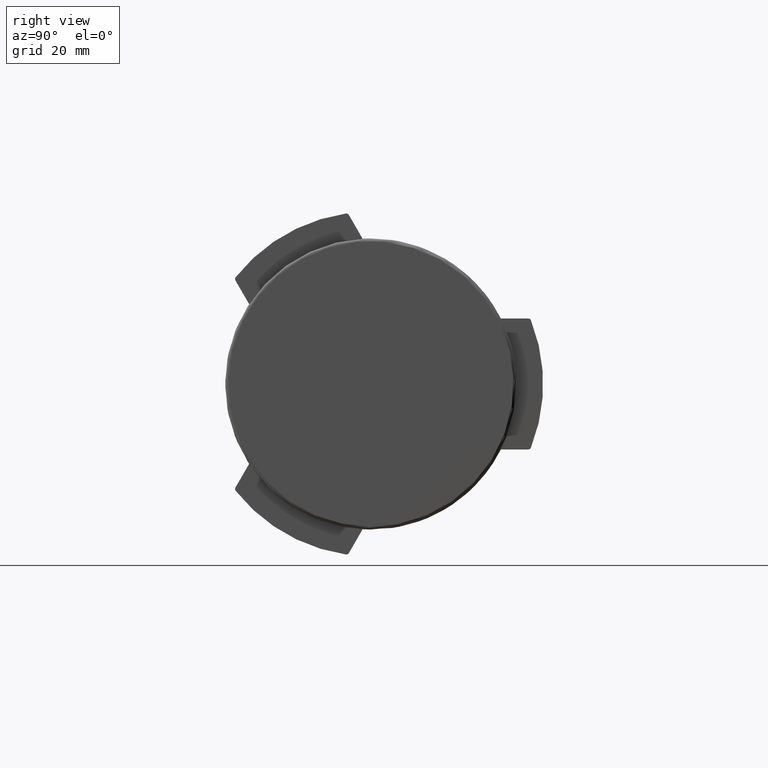
[diagram: clean part render]
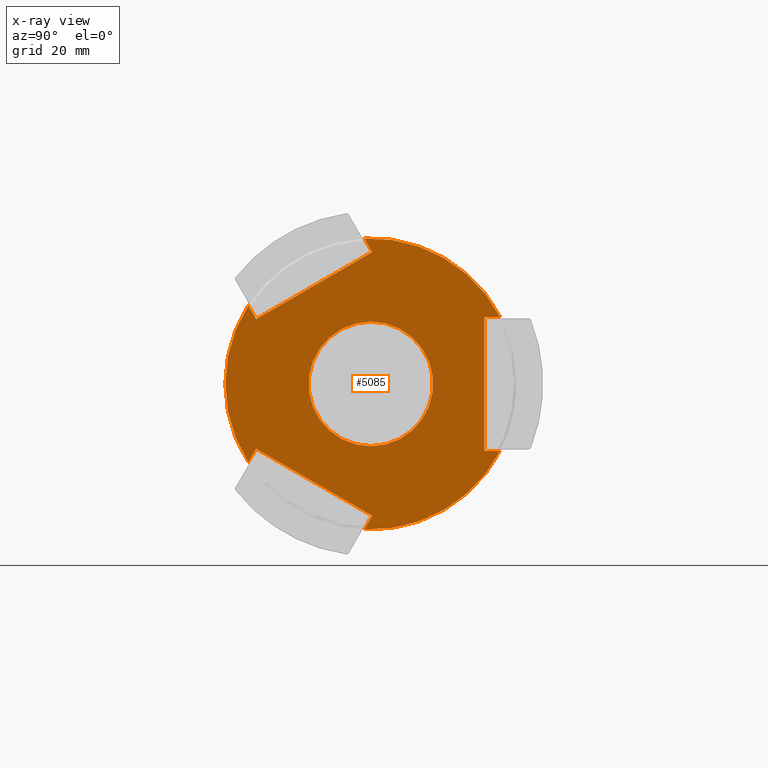
[diagram: x-ray — body ghosted, one internal face saturated and labeled with its STEP entity id]
A machine part, right view, then the same camera in x-ray: the body is ghosted and one INTERNAL B-rep face — a face not visible from any outside direction — is saturated and labeled: STEP entity #5085.
In plain terms, the highlighted planar face has unit normal (1, -0, 0).
Its self-contained STEP definition (entity closure, byte-faithful):
#42 = VERTEX_POINT ( 'NONE', #712 ) ;
#87 = ORIENTED_EDGE ( 'NONE', *, *, #2084, .T. ) ;
#218 = FACE_OUTER_BOUND ( 'NONE', #8302, .T. ) ;
#320 = LINE ( 'NONE', #13228, #8144 ) ;
#638 = AXIS2_PLACEMENT_3D ( 'NONE', #8828, #11201, #9952 ) ;
#663 = CARTESIAN_POINT ( 'NONE',  ( 0.000000000000000000, 0.000000000000000000, 0.000000000000000000 ) ) ;
#712 = CARTESIAN_POINT ( 'NONE',  ( 22.63749537379659671, 0.2092921435212552472, 0.000000000000000000 ) ) ;
#715 = VERTEX_POINT ( 'NONE', #12496 ) ;
#733 = ORIENTED_EDGE ( 'NONE', *, *, #6734, .F. ) ;
#1274 = ORIENTED_EDGE ( 'NONE', *, *, #4372, .T. ) ;
#1296 = CARTESIAN_POINT ( 'NONE',  ( -11.50000000000004619, 22.19797288042321171, 0.000000000000000000 ) ) ;
#1320 = DIRECTION ( 'NONE',  ( 4.070452937462397577E-31, 1.000000000000000000, -1.060244283745954078E-30 ) ) ;
#1365 = ORIENTED_EDGE ( 'NONE', *, *, #9888, .F. ) ;
#1515 = CARTESIAN_POINT ( 'NONE',  ( -5.750000000000071942, 9.959292143521045304, 0.000000000000000000 ) ) ;
#1633 = AXIS2_PLACEMENT_3D ( 'NONE', #10393, #4873, #13871 ) ;
#1824 = CARTESIAN_POINT ( 'NONE',  ( 24.97400842696460543, -1.139694296690291653, 0.000000000000000000 ) ) ;
#1889 = ORIENTED_EDGE ( 'NONE', *, *, #10004, .F. ) ;
#2084 = EDGE_CURVE ( 'NONE', #715, #2225, #14002, .T. ) ;
#2214 = EDGE_CURVE ( 'NONE', #12194, #7609, #9487, .T. ) ;
#2225 = VERTEX_POINT ( 'NONE', #13271 ) ;
#2260 = VERTEX_POINT ( 'NONE', #10915 ) ;
#2298 = VERTEX_POINT ( 'NONE', #3303 ) ;
#2304 = CARTESIAN_POINT ( 'NONE',  ( 22.63749537379659671, 0.2092921435212534986, 0.000000000000000000 ) ) ;
#2477 = CARTESIAN_POINT ( 'NONE',  ( 0.000000000000000000, 0.000000000000000000, 0.000000000000000000 ) ) ;
#2562 = PLANE ( 'NONE',  #13590 ) ;
#2616 = LINE ( 'NONE', #7667, #4905 ) ;
#2837 = CARTESIAN_POINT ( 'NONE',  ( 13.47400842696474044, -21.05827858373257655, 0.000000000000000000 ) ) ;
#3069 = VECTOR ( 'NONE', #8481, 999.9999999999998863 ) ;
#3161 = ORIENTED_EDGE ( 'NONE', *, *, #12725, .F. ) ;
#3303 = CARTESIAN_POINT ( 'NONE',  ( -10.70000000000006679, -4.341989800321579639E-30, 8.968362416231378243E-30 ) ) ;
#3733 = VERTEX_POINT ( 'NONE', #9048 ) ;
#3807 = CARTESIAN_POINT ( 'NONE',  ( -5.749999999999919176, -9.959292143521171425, 0.000000000000000000 ) ) ;
#4099 = CARTESIAN_POINT ( 'NONE',  ( 11.13749537379678323, -19.70929214352103997, 0.000000000000000000 ) ) ;
#4181 = LINE ( 'NONE', #3807, #12727 ) ;
#4372 = EDGE_CURVE ( 'NONE', #5654, #7609, #4181, .T. ) ;
#4873 = DIRECTION ( 'NONE',  ( 6.902532920683853297E-31, 1.035592380457804115E-30, -1.000000000000000000 ) ) ;
#4881 = DIRECTION ( 'NONE',  ( 8.381647117973197884E-31, -1.035592380457804115E-30, 1.000000000000000000 ) ) ;
#4905 = VECTOR ( 'NONE', #6773, 1000.000000000000000 ) ;
#5085 = ADVANCED_FACE ( 'NONE', ( #6096, #218 ), #2562, .F. ) ;
#5338 = CARTESIAN_POINT ( 'NONE',  ( -11.13749537379651144, -19.70929214352119629, -9.714451465470119729E-14 ) ) ;
#5654 = VERTEX_POINT ( 'NONE', #11633 ) ;
#6084 = LINE ( 'NONE', #4099, #3069 ) ;
#6096 = FACE_BOUND ( 'NONE', #9316, .T. ) ;
#6127 = LINE ( 'NONE', #11702, #8962 ) ;
#6194 = EDGE_CURVE ( 'NONE', #3733, #12194, #10345, .T. ) ;
#6225 = LINE ( 'NONE', #2304, #6579 ) ;
#6289 = ORIENTED_EDGE ( 'NONE', *, *, #2214, .F. ) ;
#6429 = VERTEX_POINT ( 'NONE', #9852 ) ;
#6537 = ORIENTED_EDGE ( 'NONE', *, *, #8579, .T. ) ;
#6579 = VECTOR ( 'NONE', #11402, 1000.000000000000000 ) ;
#6734 = EDGE_CURVE ( 'NONE', #5654, #42, #6084, .T. ) ;
#6773 = DIRECTION ( 'NONE',  ( 0.5000000000000035527, -0.8660254037844367092, 6.409494854920675377E-31 ) ) ;
#7333 = AXIS2_PLACEMENT_3D ( 'NONE', #2477, #11413, #12582 ) ;
#7609 = VERTEX_POINT ( 'NONE', #2837 ) ;
#7667 = CARTESIAN_POINT ( 'NONE',  ( -22.63749537379670329, 0.2092921435209447178, 0.000000000000000000 ) ) ;
#8093 = ORIENTED_EDGE ( 'NONE', *, *, #6194, .F. ) ;
#8144 = VECTOR ( 'NONE', #9911, 1000.000000000000000 ) ;
#8240 = EDGE_CURVE ( 'NONE', #42, #9343, #6225, .T. ) ;
#8302 = EDGE_LOOP ( 'NONE', ( #9179, #6537, #9906, #1365, #12080, #87, #1889, #12837, #733, #1274, #6289, #8093 ) ) ;
#8481 = DIRECTION ( 'NONE',  ( 0.4999999999999917843, 0.8660254037844434816, -1.429810390713074263E-30 ) ) ;
#8539 = LINE ( 'NONE', #1515, #9245 ) ;
#8579 = EDGE_CURVE ( 'NONE', #10153, #6429, #8539, .T. ) ;
#8620 = DIRECTION ( 'NONE',  ( 1.000000000000000000, 4.057934392823881420E-31, -8.381647117973199635E-31 ) ) ;
#8627 = CIRCLE ( 'NONE', #1633, 10.70000000000006679 ) ;
#8648 = CIRCLE ( 'NONE', #7333, 25.00000000000015632 ) ;
#8828 = CARTESIAN_POINT ( 'NONE',  ( 0.000000000000000000, 0.000000000000000000, 0.000000000000000000 ) ) ;
#8962 = VECTOR ( 'NONE', #9431, 1000.000000000000000 ) ;
#9027 = CARTESIAN_POINT ( 'NONE',  ( -13.47400842696444911, -21.05827858373276484, -9.714451465470119729E-14 ) ) ;
#9048 = CARTESIAN_POINT ( 'NONE',  ( -11.13749537379651144, -19.70929214352119629, -9.714451465470119729E-14 ) ) ;
#9104 = CARTESIAN_POINT ( 'NONE',  ( -22.63749537379670329, 0.2092921435209447178, 0.000000000000000000 ) ) ;
#9179 = ORIENTED_EDGE ( 'NONE', *, *, #12073, .F. ) ;
#9245 = VECTOR ( 'NONE', #14219, 1000.000000000000000 ) ;
#9253 = AXIS2_PLACEMENT_3D ( 'NONE', #663, #14416, #8620 ) ;
#9270 = DIRECTION ( 'NONE',  ( 0.8660254037844434816, -0.4999999999999915623, -1.725633230170951282E-31 ) ) ;
#9316 = EDGE_LOOP ( 'NONE', ( #3161 ) ) ;
#9343 = VERTEX_POINT ( 'NONE', #1824 ) ;
#9431 = DIRECTION ( 'NONE',  ( -1.000000000000000000, 1.508455196501565513E-16, 8.381647117973197884E-31 ) ) ;
#9487 = CIRCLE ( 'NONE', #9253, 25.00000000000015632 ) ;
#9488 = DIRECTION ( 'NONE',  ( 1.000000000000000000, 4.057934392823880544E-31, -8.381647117973197884E-31 ) ) ;
#9852 = CARTESIAN_POINT ( 'NONE',  ( -24.97400842696468359, -1.139694296690629605, 0.000000000000000000 ) ) ;
#9888 = EDGE_CURVE ( 'NONE', #2260, #14410, #320, .T. ) ;
#9906 = ORIENTED_EDGE ( 'NONE', *, *, #12322, .F. ) ;
#9911 = DIRECTION ( 'NONE',  ( -3.154042683594184767E-16, 1.000000000000000000, -1.056948228073669013E-30 ) ) ;
#9952 = DIRECTION ( 'NONE',  ( 1.000000000000000000, 4.057934392823881420E-31, -8.381647117973199635E-31 ) ) ;
#10004 = EDGE_CURVE ( 'NONE', #9343, #2225, #13708, .T. ) ;
#10153 = VERTEX_POINT ( 'NONE', #9104 ) ;
#10345 = LINE ( 'NONE', #5338, #11076 ) ;
#10393 = CARTESIAN_POINT ( 'NONE',  ( 0.000000000000000000, 0.000000000000000000, 0.000000000000000000 ) ) ;
#10508 = CARTESIAN_POINT ( 'NONE',  ( 0.000000000000000000, 0.000000000000000000, 0.000000000000000000 ) ) ;
#10915 = CARTESIAN_POINT ( 'NONE',  ( -11.50000000000004619, 19.50000000000009592, 0.000000000000000000 ) ) ;
#11076 = VECTOR ( 'NONE', #11097, 1000.000000000000000 ) ;
#11097 = DIRECTION ( 'NONE',  ( -0.8660254037844364872, -0.5000000000000038858, 1.257247067695978632E-30 ) ) ;
#11201 = DIRECTION ( 'NONE',  ( -6.902532920683853297E-31, -1.035592380457804115E-30, 1.000000000000000000 ) ) ;
#11402 = DIRECTION ( 'NONE',  ( 0.8660254037844435926, -0.4999999999999913403, -1.725633230170951501E-31 ) ) ;
#11413 = DIRECTION ( 'NONE',  ( -6.902532920683853297E-31, -1.035592380457804115E-30, 1.000000000000000000 ) ) ;
#11633 = CARTESIAN_POINT ( 'NONE',  ( 11.13749537379678323, -19.70929214352103997, 0.000000000000000000 ) ) ;
#11660 = VECTOR ( 'NONE', #1320, 1000.000000000000000 ) ;
#11702 = CARTESIAN_POINT ( 'NONE',  ( 11.50000000000004974, 19.50000000000009237, 9.714451465470119729E-14 ) ) ;
#12073 = EDGE_CURVE ( 'NONE', #10153, #3733, #2616, .T. ) ;
#12080 = ORIENTED_EDGE ( 'NONE', *, *, #14411, .F. ) ;
#12194 = VERTEX_POINT ( 'NONE', #9027 ) ;
#12322 = EDGE_CURVE ( 'NONE', #14410, #6429, #8648, .T. ) ;
#12496 = CARTESIAN_POINT ( 'NONE',  ( 11.50000000000004974, 19.50000000000009237, 9.714451465470119729E-14 ) ) ;
#12582 = DIRECTION ( 'NONE',  ( 1.000000000000000000, 4.057934392823881420E-31, -8.381647117973199635E-31 ) ) ;
#12725 = EDGE_CURVE ( 'NONE', #2298, #2298, #8627, .T. ) ;
#12727 = VECTOR ( 'NONE', #9270, 1000.000000000000114 ) ;
#12837 = ORIENTED_EDGE ( 'NONE', *, *, #8240, .F. ) ;
#13228 = CARTESIAN_POINT ( 'NONE',  ( -11.50000000000004619, 19.50000000000009592, 0.000000000000000000 ) ) ;
#13271 = CARTESIAN_POINT ( 'NONE',  ( 11.50000000000004974, 22.19797288042321171, 9.714451465470119729E-14 ) ) ;
#13590 = AXIS2_PLACEMENT_3D ( 'NONE', #10508, #4881, #9488 ) ;
#13708 = CIRCLE ( 'NONE', #638, 25.00000000000015632 ) ;
#13871 = DIRECTION ( 'NONE',  ( -1.000000000000000000, -4.057934392823880544E-31, 8.381647117973197884E-31 ) ) ;
#14002 = LINE ( 'NONE', #14037, #11660 ) ;
#14037 = CARTESIAN_POINT ( 'NONE',  ( 11.50000000000004974, 1.925929944387235853E-31, 0.000000000000000000 ) ) ;
#14219 = DIRECTION ( 'NONE',  ( -0.8660254037844365982, -0.5000000000000036637, 1.528418003865699513E-30 ) ) ;
#14410 = VERTEX_POINT ( 'NONE', #1296 ) ;
#14411 = EDGE_CURVE ( 'NONE', #715, #2260, #6127, .T. ) ;
#14416 = DIRECTION ( 'NONE',  ( -6.902532920683853297E-31, -1.035592380457804115E-30, 1.000000000000000000 ) ) ;